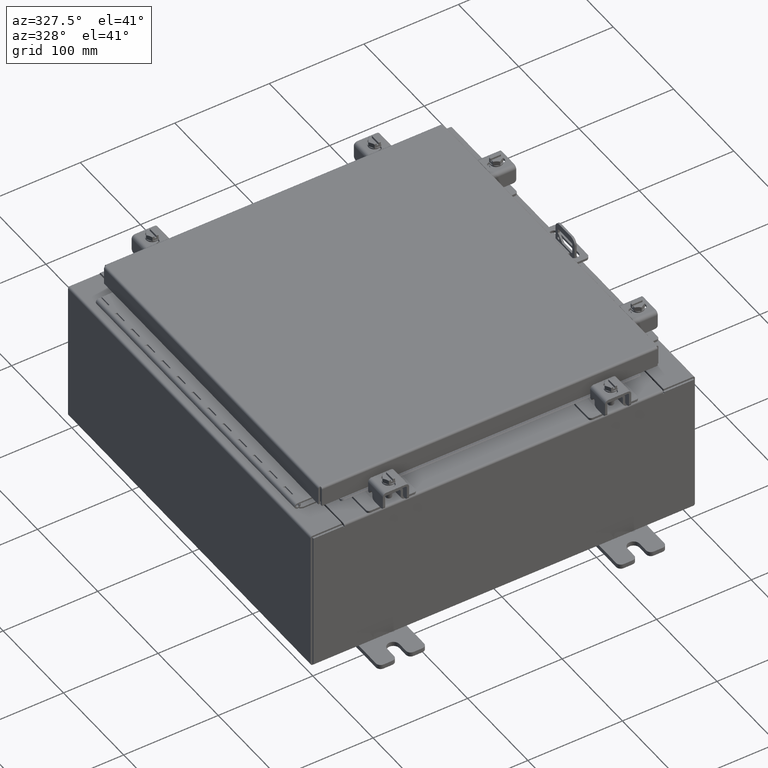
[diagram: clean part render]
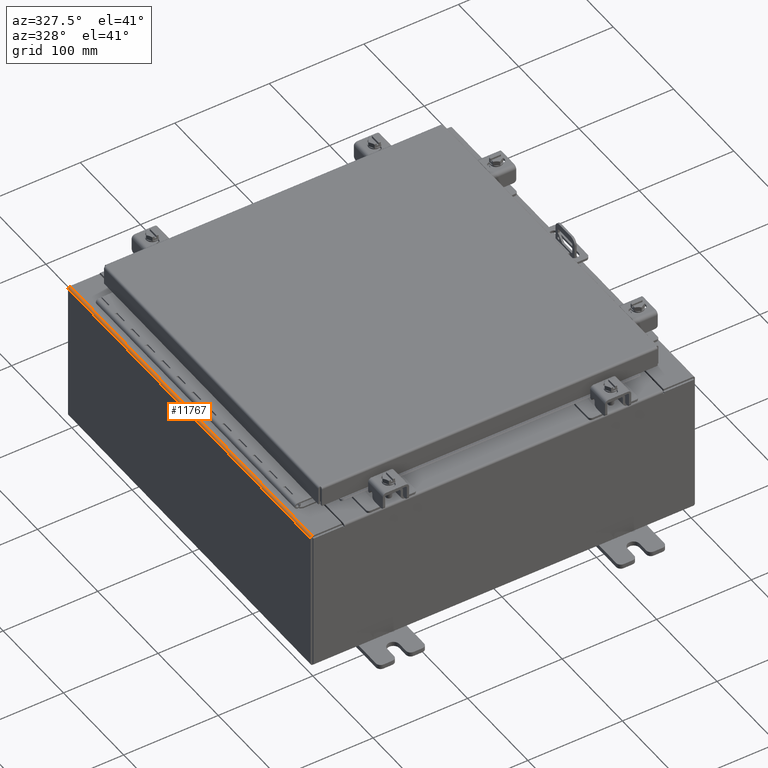
[diagram: same view with one face highlighted and labeled with its STEP entity id]
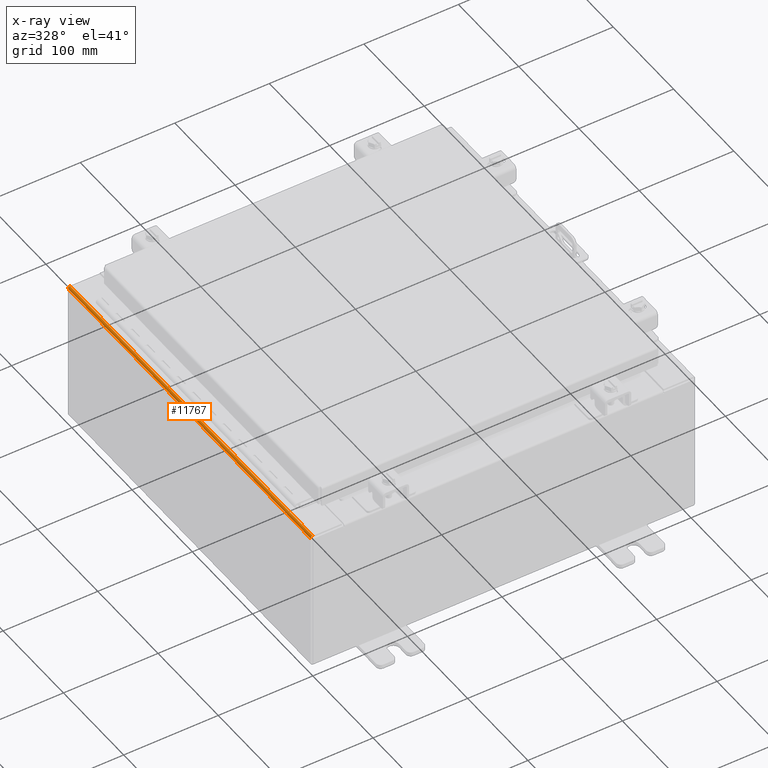
[diagram: x-ray of the same camera — body ghosted, the highlighted face saturated]
A machine part, auxiliary view. The second image highlights one B-rep face of the part: STEP entity #11767.
The next image is the same camera in x-ray: the body ghosted, the highlighted face saturated — about 0% of this face is hidden behind the body in this view.
In plain terms, the highlighted cylindrical surface (edge-blend (fillet) strip) has radius 2.2276 mm, axis along (-0, -1, -0).
Its self-contained STEP definition (entity closure, byte-faithful):
#73 = DIRECTION ( 'NONE',  ( -0.0000000000000000000, -1.000000000000000000, -0.0000000000000000000 ) ) ;
#1677 = VECTOR ( 'NONE', #12805, 39.37007874015748100 ) ;
#1968 = DIRECTION ( 'NONE',  ( -0.0000000000000000000, -1.000000000000000000, -0.0000000000000000000 ) ) ;
#3046 = CYLINDRICAL_SURFACE ( 'NONE', #14758, 0.08770000000000026400 ) ;
#3797 = EDGE_CURVE ( 'NONE', #5981, #8110, #9903, .T. ) ;
#3966 = CARTESIAN_POINT ( 'NONE',  ( -7.912300000000022300, 7.925299999999998200, 5.925299999999999100 ) ) ;
#4067 = DIRECTION ( 'NONE',  ( 0.0000000000000000000, 1.000000000000000000, 0.0000000000000000000 ) ) ;
#5192 = AXIS2_PLACEMENT_3D ( 'NONE', #16148, #4067, #18163 ) ;
#5858 = CARTESIAN_POINT ( 'NONE',  ( -8.000000000000021300, 7.925299999999998200, 5.837599999999999200 ) ) ;
#5981 = VERTEX_POINT ( 'NONE', #5858 ) ;
#6174 = AXIS2_PLACEMENT_3D ( 'NONE', #14074, #1968, #16101 ) ;
#6773 = CARTESIAN_POINT ( 'NONE',  ( -8.000000000000023100, -7.925300000000000900, 5.837599999999999200 ) ) ;
#7430 = DIRECTION ( 'NONE',  ( 6.893992640440775600E-017, 1.000000000000000000, 4.917321139196952400E-031 ) ) ;
#7685 = LINE ( 'NONE', #6773, #1677 ) ;
#8110 = VERTEX_POINT ( 'NONE', #3966 ) ;
#8234 = CARTESIAN_POINT ( 'NONE',  ( -8.000000000000023100, -7.925300000000000000, 5.837599999999999200 ) ) ;
#8420 = ORIENTED_EDGE ( 'NONE', *, *, #16355, .F. ) ;
#9903 = CIRCLE ( 'NONE', #5192, 0.08770000000000026400 ) ;
#11186 = VERTEX_POINT ( 'NONE', #16534 ) ;
#11767 = ADVANCED_FACE ( 'NONE', ( #25130 ), #3046, .T. ) ;
#12002 = LINE ( 'NONE', #23558, #16739 ) ;
#12198 = CARTESIAN_POINT ( 'NONE',  ( -7.912300000000022300, -7.925300000000000900, 5.837599999999999200 ) ) ;
#12805 = DIRECTION ( 'NONE',  ( 0.0000000000000000000, 1.000000000000000000, 0.0000000000000000000 ) ) ;
#14074 = CARTESIAN_POINT ( 'NONE',  ( -7.912300000000022300, -7.925300000000000000, 5.837599999999999200 ) ) ;
#14758 = AXIS2_PLACEMENT_3D ( 'NONE', #12198, #73, #24251 ) ;
#16061 = VERTEX_POINT ( 'NONE', #8234 ) ;
#16101 = DIRECTION ( 'NONE',  ( 0.0000000000000000000, 0.0000000000000000000, -1.000000000000000000 ) ) ;
#16148 = CARTESIAN_POINT ( 'NONE',  ( -7.912300000000022300, 7.925299999999998200, 5.837599999999999200 ) ) ;
#16355 = EDGE_CURVE ( 'NONE', #16061, #5981, #7685, .T. ) ;
#16534 = CARTESIAN_POINT ( 'NONE',  ( -7.912300000000022300, -7.925300000000000000, 5.925299999999999100 ) ) ;
#16739 = VECTOR ( 'NONE', #7430, 39.37007874015748100 ) ;
#16899 = CIRCLE ( 'NONE', #6174, 0.08770000000000026400 ) ;
#17793 = ORIENTED_EDGE ( 'NONE', *, *, #3797, .F. ) ;
#18163 = DIRECTION ( 'NONE',  ( 0.0000000000000000000, 0.0000000000000000000, -1.000000000000000000 ) ) ;
#18488 = EDGE_LOOP ( 'NONE', ( #8420, #19438, #26113, #17793 ) ) ;
#19293 = EDGE_CURVE ( 'NONE', #11186, #16061, #16899, .T. ) ;
#19438 = ORIENTED_EDGE ( 'NONE', *, *, #19293, .F. ) ;
#23416 = EDGE_CURVE ( 'NONE', #11186, #8110, #12002, .T. ) ;
#23558 = CARTESIAN_POINT ( 'NONE',  ( -7.912300000000021400, 7.925299999999998200, 5.925299999999999100 ) ) ;
#24251 = DIRECTION ( 'NONE',  ( -1.245996804407870000E-014, 0.0000000000000000000, 1.000000000000000000 ) ) ;
#25130 = FACE_OUTER_BOUND ( 'NONE', #18488, .T. ) ;
#26113 = ORIENTED_EDGE ( 'NONE', *, *, #23416, .T. ) ;